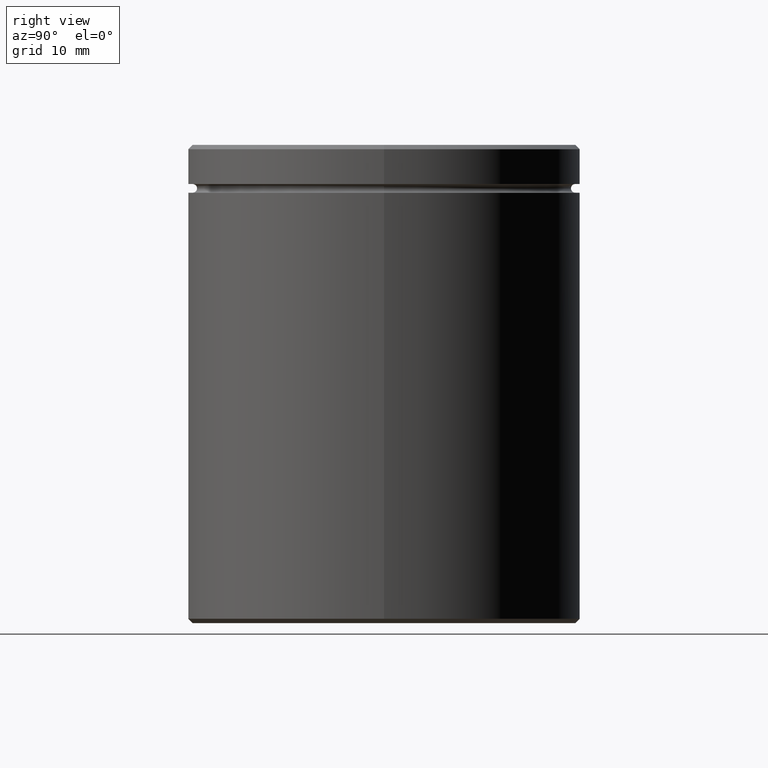
[diagram: clean part render]
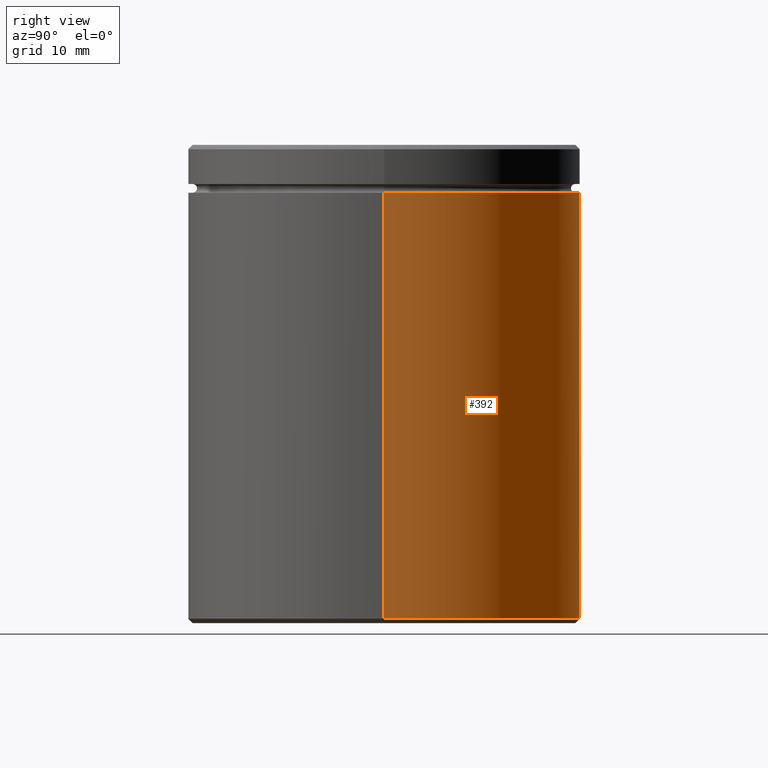
[diagram: same view with one face highlighted and labeled with its STEP entity id]
A machine part, right view. The second image highlights one B-rep face of the part: STEP entity #392.
In plain terms, the highlighted cylindrical surface (partial cylindrical patch) has radius 22.5 mm, axis along (-0, -0, 1).
Its self-contained STEP definition (entity closure, byte-faithful):
#1 = ORIENTED_EDGE ( 'NONE', *, *, #313, .F. ) ;
#4 = ORIENTED_EDGE ( 'NONE', *, *, #544, .T. ) ;
#37 = DIRECTION ( 'NONE',  ( -0.000000000000000000, -0.000000000000000000, 1.000000000000000000 ) ) ;
#41 = VERTEX_POINT ( 'NONE', #553 ) ;
#42 = CIRCLE ( 'NONE', #71, 22.50000000000000000 ) ;
#71 = AXIS2_PLACEMENT_3D ( 'NONE', #178, #338, #290 ) ;
#82 = CIRCLE ( 'NONE', #226, 22.50000000000000000 ) ;
#110 = CARTESIAN_POINT ( 'NONE',  ( 0.000000000000000000, 0.000000000000000000, 0.000000000000000000 ) ) ;
#129 = CARTESIAN_POINT ( 'NONE',  ( 22.50000000000000000, 0.000000000000000000, -5.500000000000000000 ) ) ;
#133 = CARTESIAN_POINT ( 'NONE',  ( -22.50000000000000000, 2.755455298081544778E-15, -54.49999999999999289 ) ) ;
#164 = CARTESIAN_POINT ( 'NONE',  ( -22.50000000000000000, 2.755455298081544778E-15, -5.500000000000000000 ) ) ;
#178 = CARTESIAN_POINT ( 'NONE',  ( 0.000000000000000000, 0.000000000000000000, -5.500000000000000000 ) ) ;
#193 = VECTOR ( 'NONE', #384, 1000.000000000000000 ) ;
#198 = ORIENTED_EDGE ( 'NONE', *, *, #301, .T. ) ;
#200 = CARTESIAN_POINT ( 'NONE',  ( 22.50000000000000000, 0.000000000000000000, 0.000000000000000000 ) ) ;
#226 = AXIS2_PLACEMENT_3D ( 'NONE', #263, #37, #354 ) ;
#234 = CARTESIAN_POINT ( 'NONE',  ( -22.50000000000000000, 2.755455298081544778E-15, 0.000000000000000000 ) ) ;
#243 = DIRECTION ( 'NONE',  ( -0.000000000000000000, -0.000000000000000000, 1.000000000000000000 ) ) ;
#244 = FACE_OUTER_BOUND ( 'NONE', #323, .T. ) ;
#248 = AXIS2_PLACEMENT_3D ( 'NONE', #110, #334, #426 ) ;
#263 = CARTESIAN_POINT ( 'NONE',  ( 0.000000000000000000, 0.000000000000000000, -54.49999999999999289 ) ) ;
#270 = VERTEX_POINT ( 'NONE', #129 ) ;
#290 = DIRECTION ( 'NONE',  ( 1.000000000000000000, 0.000000000000000000, 0.000000000000000000 ) ) ;
#301 = EDGE_CURVE ( 'NONE', #41, #498, #82, .T. ) ;
#313 = EDGE_CURVE ( 'NONE', #41, #270, #474, .T. ) ;
#323 = EDGE_LOOP ( 'NONE', ( #198, #4, #451, #1 ) ) ;
#334 = DIRECTION ( 'NONE',  ( -0.000000000000000000, -0.000000000000000000, 1.000000000000000000 ) ) ;
#338 = DIRECTION ( 'NONE',  ( -0.000000000000000000, -0.000000000000000000, 1.000000000000000000 ) ) ;
#354 = DIRECTION ( 'NONE',  ( -1.000000000000000000, 0.000000000000000000, 0.000000000000000000 ) ) ;
#364 = CYLINDRICAL_SURFACE ( 'NONE', #248, 22.50000000000000000 ) ;
#369 = VECTOR ( 'NONE', #243, 1000.000000000000000 ) ;
#384 = DIRECTION ( 'NONE',  ( -0.000000000000000000, -0.000000000000000000, 1.000000000000000000 ) ) ;
#392 = ADVANCED_FACE ( 'NONE', ( #244 ), #364, .T. ) ;
#407 = EDGE_CURVE ( 'NONE', #270, #540, #42, .T. ) ;
#426 = DIRECTION ( 'NONE',  ( 1.000000000000000000, 0.000000000000000000, 0.000000000000000000 ) ) ;
#451 = ORIENTED_EDGE ( 'NONE', *, *, #407, .F. ) ;
#474 = LINE ( 'NONE', #200, #193 ) ;
#498 = VERTEX_POINT ( 'NONE', #133 ) ;
#521 = LINE ( 'NONE', #234, #369 ) ;
#540 = VERTEX_POINT ( 'NONE', #164 ) ;
#544 = EDGE_CURVE ( 'NONE', #498, #540, #521, .T. ) ;
#553 = CARTESIAN_POINT ( 'NONE',  ( 22.50000000000000000, 0.000000000000000000, -54.49999999999999289 ) ) ;